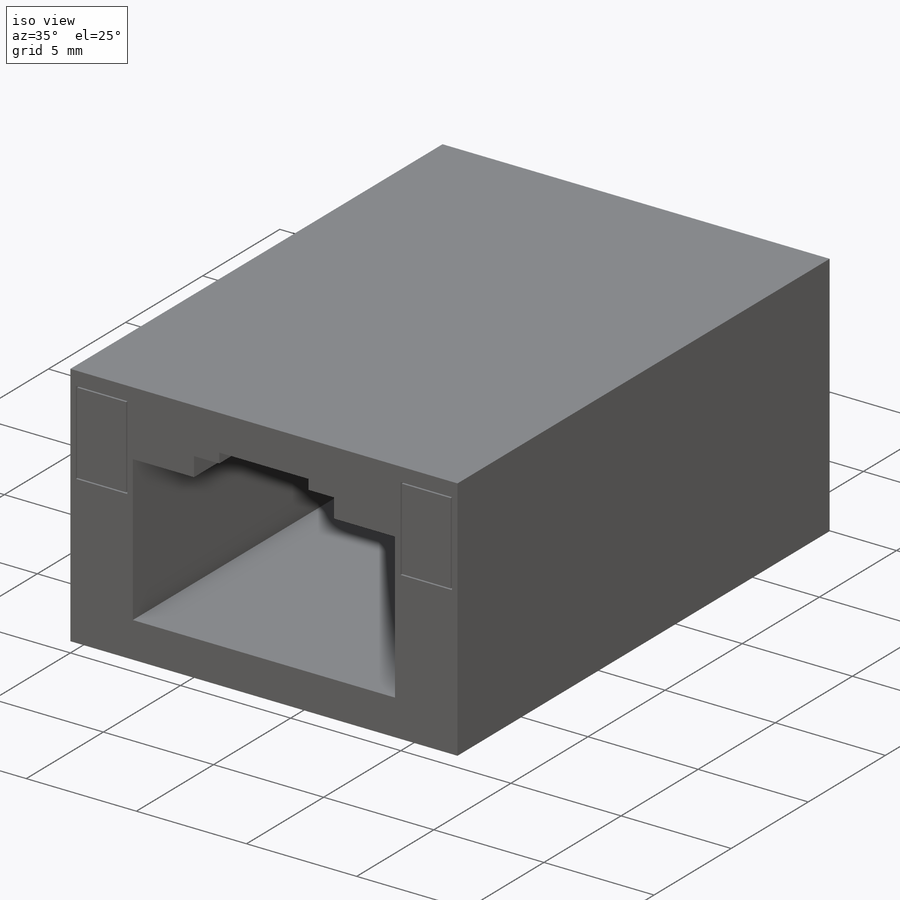
[diagram: iso view]
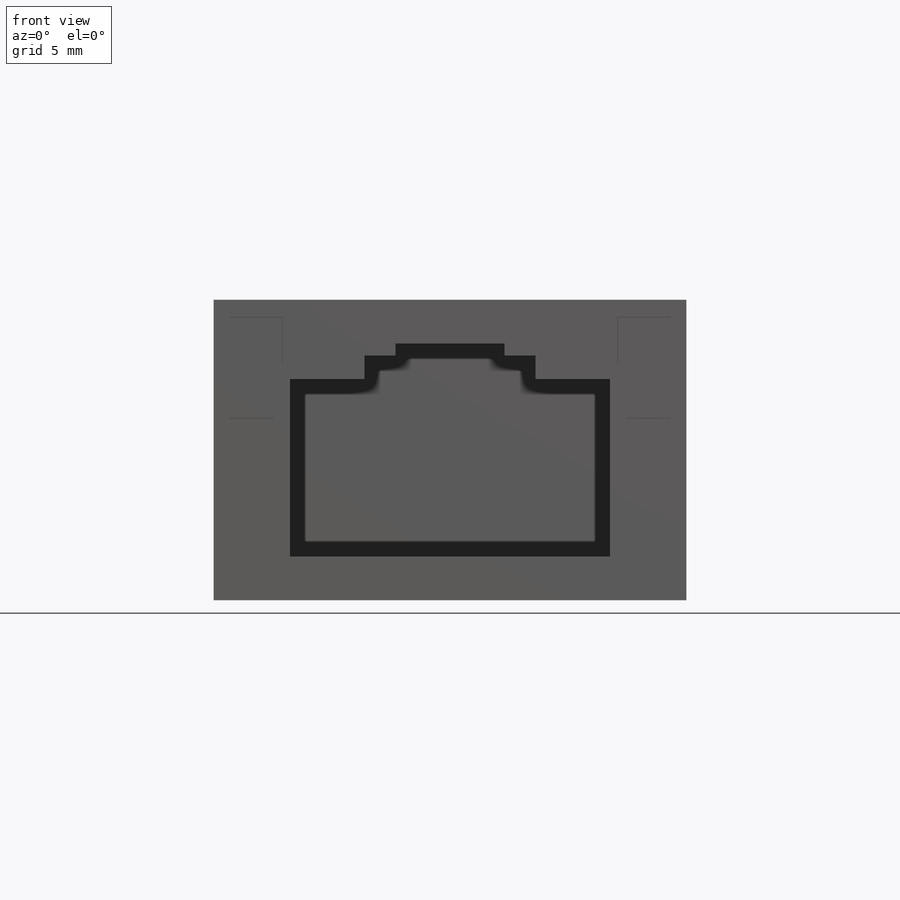
[diagram: front view]
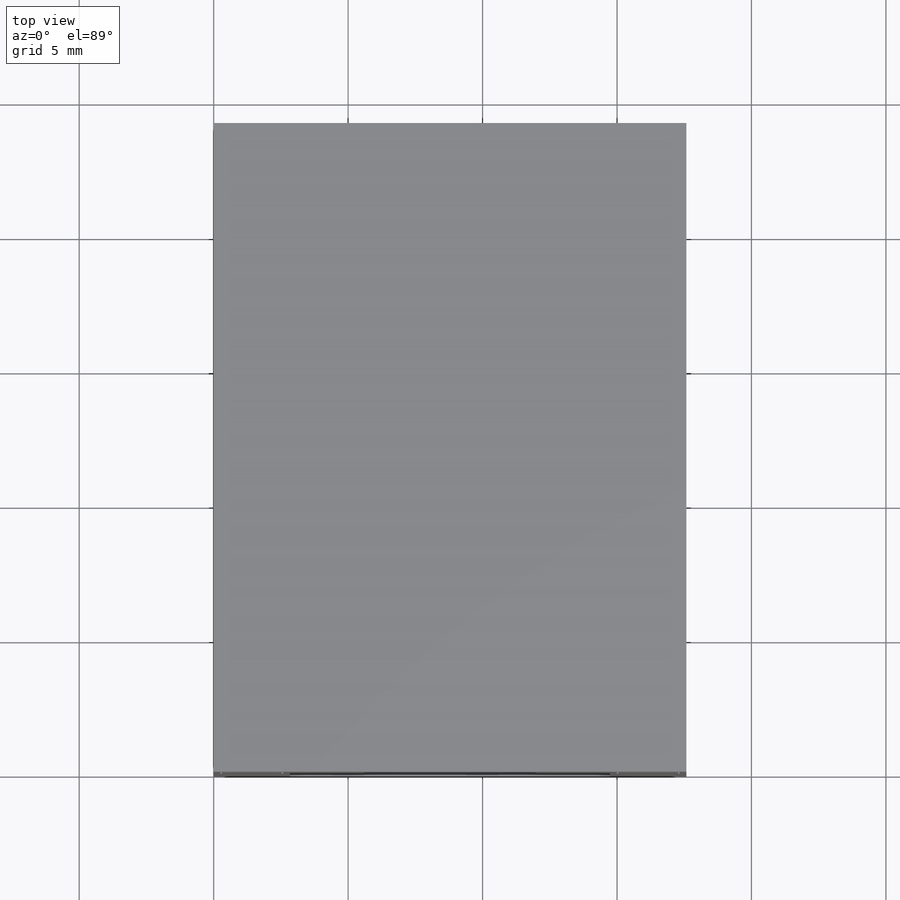
[diagram: top view]
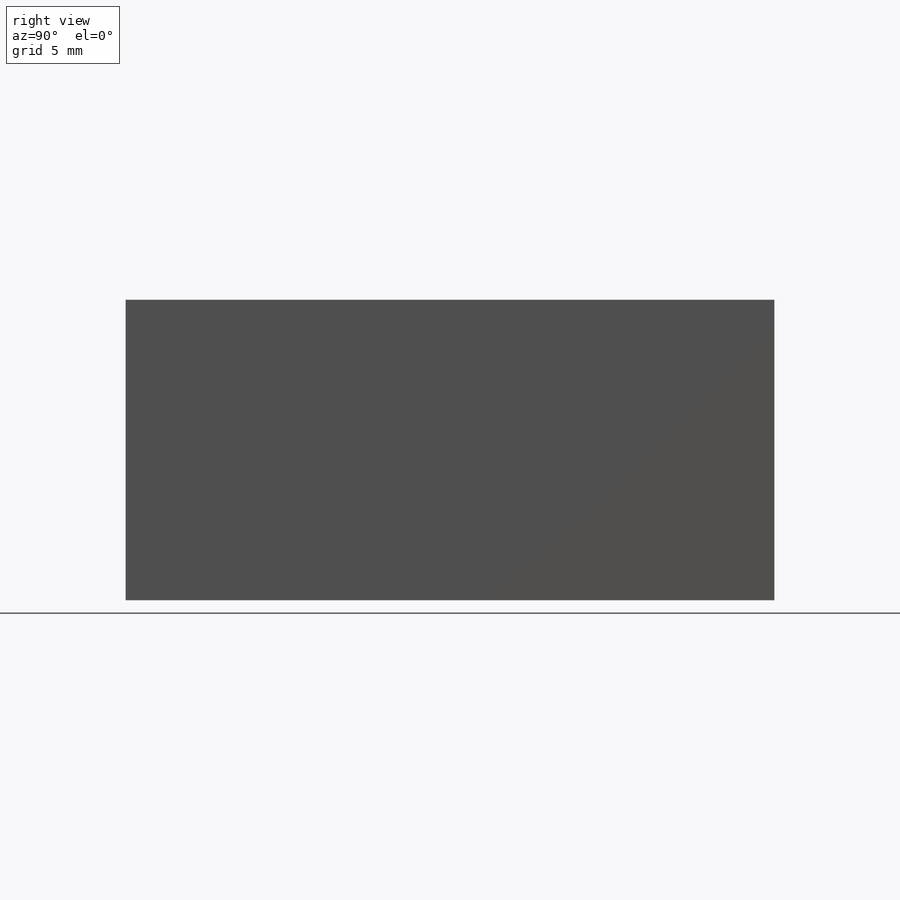
[diagram: right view]
SOLIDWORKS PART (.sldprt)
format: sldprt  version: not decoded by parser v0  size: 261,120 bytes
history: native  units: mm
features: sketch x4, cut_extrude x2, material x1, extrude x1 (+13 scaffold rows collapsed)
feature tree (21):
  scaffold x13  (default folders/planes/origin — collapsed)
  material  "Material <not specified>"
  sketch  "Sketch1"  dims[D1=17.5768mm D2=11.176mm]
  extrude  "Boss-Extrude1"  Depth=24.13mm
  sketch  "Sketch2"  dims[D1=11.9mm D2=6.35mm D3=4.06mm D4=6.6mm D5=7.47mm D6=7.92mm]
  cut_extrude  "Cut-Extrude1"  Depth=22.55mm
  sketch  "Sketch3"  dims[D1=0.254mm D2=0.254mm D3=0.635mm D4=0.254mm D5=3.81mm D6=0.0508mm D7=0.0508mm D8=0.0508mm D9=0.0508mm D10=0.0508mm]
  cut_extrude  "Cut-Extrude2"  Depth=0.254mm
  sketch  "Sketch4"  dims[D1=17.78mm D2=24.13mm]
decode coverage: 7 of 7 modeling features carry decoded parameters
note: suppression state not decoded; provenance and decode notes live in map.json
